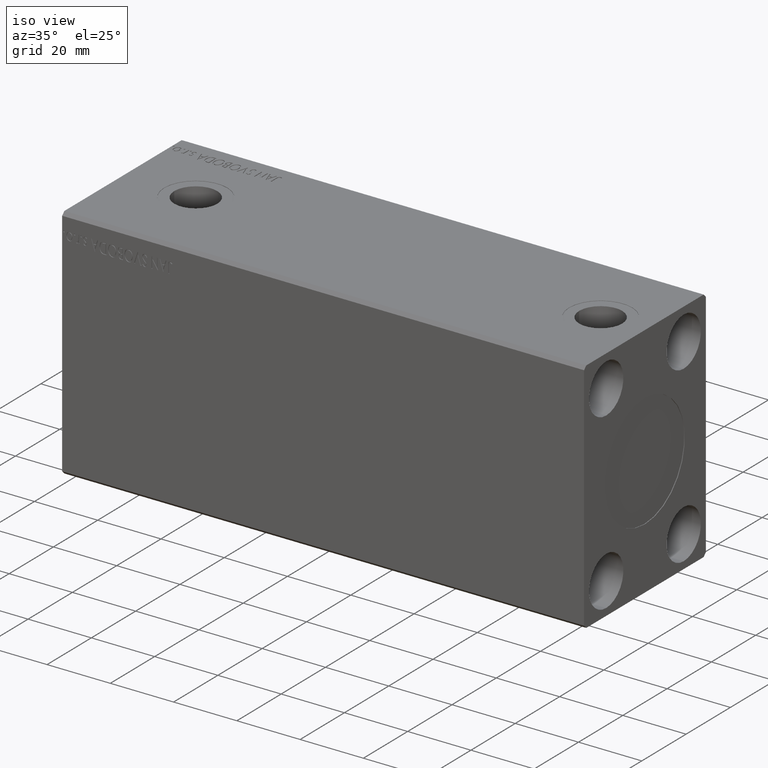
[diagram: clean part render]
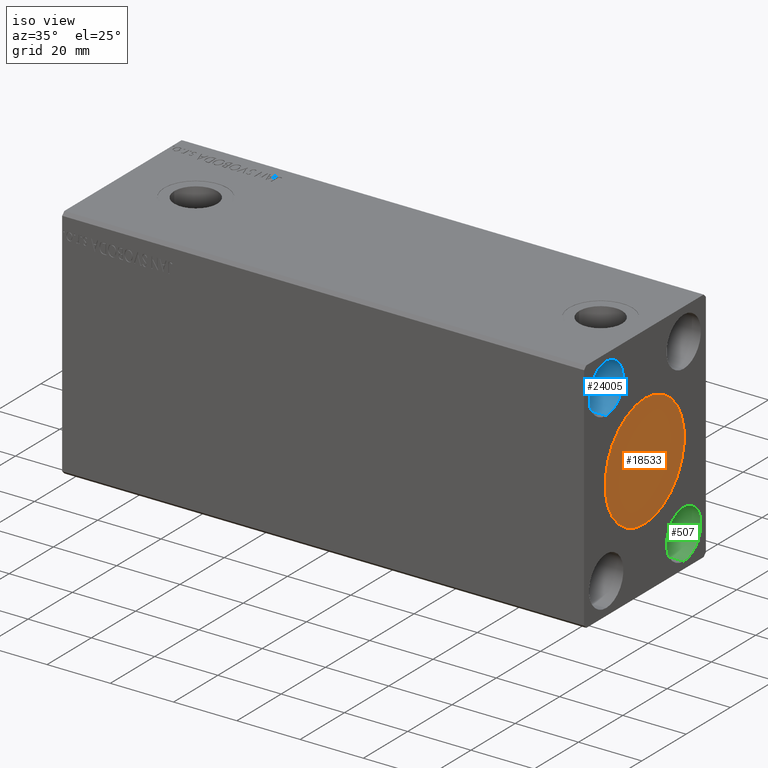
[diagram: same view with three faces highlighted in distinct colors, each labeled with its STEP entity id]
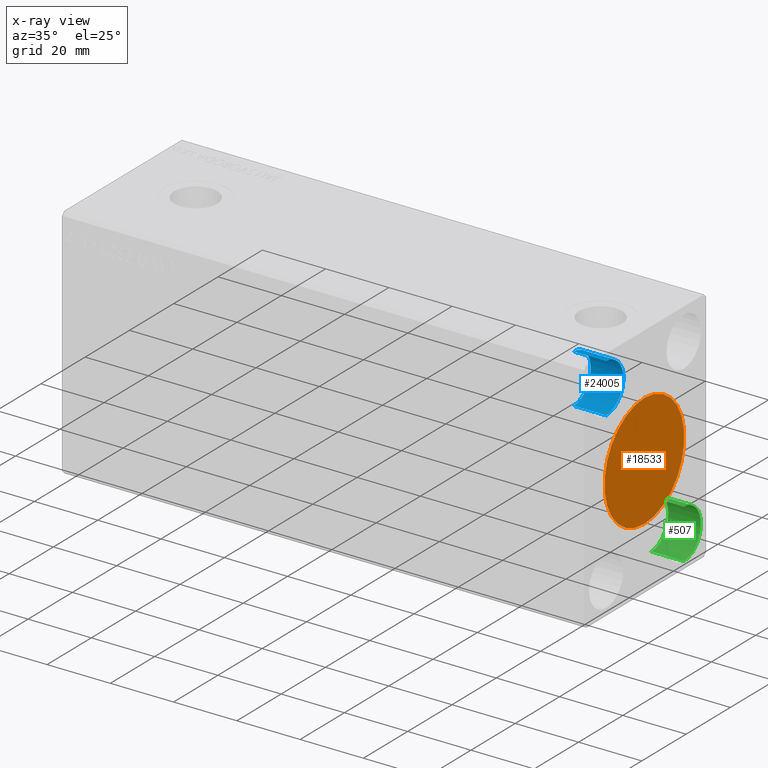
[diagram: x-ray of the same camera — body ghosted, the three highlighted faces saturated]
A machine part, iso view with three faces highlighted in distinct colors.
The next image is the same camera in x-ray (body ghosted, the three faces saturated) — at least one of them is partly hidden behind the body in this view.
Their STEP definitions:

[orange] entity #18533 — the highlighted planar face has unit normal (1, 0, 0).
#1634 = DIRECTION ( 'NONE',  ( 1.000000000000000000, 0.000000000000000000, 0.000000000000000000 ) ) ;
#1769 = CARTESIAN_POINT ( 'NONE',  ( 164.8000000000000114, 0.000000000000000000, 0.000000000000000000 ) ) ;
#2268 = EDGE_CURVE ( 'NONE', #30353, #29653, #7226, .T. ) ;
#2701 = AXIS2_PLACEMENT_3D ( 'NONE', #4879, #1634, #14792 ) ;
#4879 = CARTESIAN_POINT ( 'NONE',  ( 164.8000000000000114, 0.000000000000000000, 0.000000000000000000 ) ) ;
#7226 = CIRCLE ( 'NONE', #23735, 18.00000000000000000 ) ;
#8275 = CARTESIAN_POINT ( 'NONE',  ( 164.8000000000000114, 0.000000000000000000, 0.000000000000000000 ) ) ;
#11275 = DIRECTION ( 'NONE',  ( 0.000000000000000000, 0.000000000000000000, -1.000000000000000000 ) ) ;
#11916 = AXIS2_PLACEMENT_3D ( 'NONE', #8275, #21402, #34543 ) ;
#14402 = CIRCLE ( 'NONE', #2701, 18.00000000000000000 ) ;
#14792 = DIRECTION ( 'NONE',  ( 0.000000000000000000, 0.000000000000000000, -1.000000000000000000 ) ) ;
#15360 = CARTESIAN_POINT ( 'NONE',  ( 164.8000000000000114, 0.000000000000000000, -18.00000000000000000 ) ) ;
#18533 = ADVANCED_FACE ( 'NONE', ( #41005 ), #37787, .T. ) ;
#21402 = DIRECTION ( 'NONE',  ( 1.000000000000000000, 0.000000000000000000, 0.000000000000000000 ) ) ;
#23735 = AXIS2_PLACEMENT_3D ( 'NONE', #1769, #40767, #11275 ) ;
#29653 = VERTEX_POINT ( 'NONE', #30618 ) ;
#30353 = VERTEX_POINT ( 'NONE', #15360 ) ;
#30618 = CARTESIAN_POINT ( 'NONE',  ( 164.8000000000000114, 2.204364238465235428E-15, 18.00000000000000000 ) ) ;
#32519 = EDGE_LOOP ( 'NONE', ( #39730, #37369 ) ) ;
#34543 = DIRECTION ( 'NONE',  ( 0.000000000000000000, 0.000000000000000000, -1.000000000000000000 ) ) ;
#37369 = ORIENTED_EDGE ( 'NONE', *, *, #42148, .T. ) ;
#37787 = PLANE ( 'NONE',  #11916 ) ;
#39730 = ORIENTED_EDGE ( 'NONE', *, *, #2268, .T. ) ;
#40767 = DIRECTION ( 'NONE',  ( 1.000000000000000000, 0.000000000000000000, 0.000000000000000000 ) ) ;
#41005 = FACE_OUTER_BOUND ( 'NONE', #32519, .T. ) ;
#42148 = EDGE_CURVE ( 'NONE', #29653, #30353, #14402, .T. ) ;

[blue] entity #24005 — the highlighted cylindrical surface (edge-blend (fillet) strip) has radius 7.75 mm, axis along (1, -0, -0).
#1874 = LINE ( 'NONE', #11801, #31170 ) ;
#2901 = CARTESIAN_POINT ( 'NONE',  ( 154.6700000000000159, -17.50000000000000000, 35.25000000000000000 ) ) ;
#3063 = AXIS2_PLACEMENT_3D ( 'NONE', #28968, #16248, #22923 ) ;
#3870 = EDGE_CURVE ( 'NONE', #11226, #27870, #25859, .T. ) ;
#5258 = VECTOR ( 'NONE', #25538, 1000.000000000000000 ) ;
#6837 = ORIENTED_EDGE ( 'NONE', *, *, #29981, .F. ) ;
#9183 = ORIENTED_EDGE ( 'NONE', *, *, #14433, .T. ) ;
#9592 = VERTEX_POINT ( 'NONE', #40301 ) ;
#11226 = VERTEX_POINT ( 'NONE', #18670 ) ;
#11801 = CARTESIAN_POINT ( 'NONE',  ( 154.6700000000000159, -17.50000000000000000, 19.74999999999999645 ) ) ;
#12201 = LINE ( 'NONE', #2901, #5258 ) ;
#12229 = DIRECTION ( 'NONE',  ( 1.000000000000000000, -0.000000000000000000, -0.000000000000000000 ) ) ;
#13228 = CARTESIAN_POINT ( 'NONE',  ( 154.6700000000000159, -17.50000000000000000, 27.50000000000000000 ) ) ;
#14433 = EDGE_CURVE ( 'NONE', #29284, #27870, #1874, .T. ) ;
#15129 = ORIENTED_EDGE ( 'NONE', *, *, #39446, .T. ) ;
#15920 = ORIENTED_EDGE ( 'NONE', *, *, #3870, .F. ) ;
#16034 = CYLINDRICAL_SURFACE ( 'NONE', #3063, 7.750000000000003553 ) ;
#16248 = DIRECTION ( 'NONE',  ( 1.000000000000000000, -0.000000000000000000, -0.000000000000000000 ) ) ;
#16388 = CIRCLE ( 'NONE', #34253, 7.750000000000003553 ) ;
#18670 = CARTESIAN_POINT ( 'NONE',  ( 165.0000000000000000, -17.50000000000000000, 35.25000000000000000 ) ) ;
#22923 = DIRECTION ( 'NONE',  ( 0.000000000000000000, 0.000000000000000000, -1.000000000000000000 ) ) ;
#23340 = EDGE_LOOP ( 'NONE', ( #6837, #15129, #9183, #15920 ) ) ;
#24005 = ADVANCED_FACE ( 'NONE', ( #42310 ), #16034, .F. ) ;
#25538 = DIRECTION ( 'NONE',  ( 1.000000000000000000, -0.000000000000000000, -0.000000000000000000 ) ) ;
#25859 = CIRCLE ( 'NONE', #41690, 7.750000000000003553 ) ;
#26351 = DIRECTION ( 'NONE',  ( -1.000000000000000000, -0.000000000000000000, -0.000000000000000000 ) ) ;
#27870 = VERTEX_POINT ( 'NONE', #38158 ) ;
#28968 = CARTESIAN_POINT ( 'NONE',  ( 154.6700000000000159, -17.50000000000000000, 27.50000000000000000 ) ) ;
#29159 = DIRECTION ( 'NONE',  ( 0.000000000000000000, 0.000000000000000000, 1.000000000000000000 ) ) ;
#29284 = VERTEX_POINT ( 'NONE', #37772 ) ;
#29981 = EDGE_CURVE ( 'NONE', #9592, #11226, #12201, .T. ) ;
#30969 = CARTESIAN_POINT ( 'NONE',  ( 165.0000000000000000, -17.50000000000000000, 27.50000000000000000 ) ) ;
#31170 = VECTOR ( 'NONE', #12229, 1000.000000000000000 ) ;
#33967 = DIRECTION ( 'NONE',  ( 0.000000000000000000, 0.000000000000000000, 1.000000000000000000 ) ) ;
#34253 = AXIS2_PLACEMENT_3D ( 'NONE', #13228, #26351, #29159 ) ;
#37772 = CARTESIAN_POINT ( 'NONE',  ( 154.6700000000000159, -17.50000000000000000, 19.74999999999999645 ) ) ;
#38158 = CARTESIAN_POINT ( 'NONE',  ( 165.0000000000000000, -17.50000000000000000, 19.74999999999999645 ) ) ;
#39446 = EDGE_CURVE ( 'NONE', #9592, #29284, #16388, .T. ) ;
#40301 = CARTESIAN_POINT ( 'NONE',  ( 154.6700000000000159, -17.50000000000000000, 35.25000000000000000 ) ) ;
#40852 = DIRECTION ( 'NONE',  ( -1.000000000000000000, -0.000000000000000000, -0.000000000000000000 ) ) ;
#41690 = AXIS2_PLACEMENT_3D ( 'NONE', #30969, #40852, #33967 ) ;
#42310 = FACE_OUTER_BOUND ( 'NONE', #23340, .T. ) ;

[green] entity #507 — the highlighted cylindrical surface (edge-blend (fillet) strip) has radius 7.75 mm, axis along (1, -0, -0).
#507 = ADVANCED_FACE ( 'NONE', ( #26666 ), #20204, .F. ) ;
#1573 = ORIENTED_EDGE ( 'NONE', *, *, #4089, .F. ) ;
#1989 = CIRCLE ( 'NONE', #30916, 7.750000000000003553 ) ;
#3944 = CARTESIAN_POINT ( 'NONE',  ( 165.0000000000000000, 17.50000000000000000, -19.74999999999999645 ) ) ;
#4089 = EDGE_CURVE ( 'NONE', #36676, #15797, #4192, .T. ) ;
#4192 = LINE ( 'NONE', #24024, #38247 ) ;
#5690 = AXIS2_PLACEMENT_3D ( 'NONE', #15603, #28747, #16020 ) ;
#6150 = DIRECTION ( 'NONE',  ( 1.000000000000000000, -0.000000000000000000, -0.000000000000000000 ) ) ;
#7649 = DIRECTION ( 'NONE',  ( 1.000000000000000000, -0.000000000000000000, -0.000000000000000000 ) ) ;
#7789 = DIRECTION ( 'NONE',  ( 0.000000000000000000, 0.000000000000000000, 1.000000000000000000 ) ) ;
#10518 = DIRECTION ( 'NONE',  ( 0.000000000000000000, 0.000000000000000000, -1.000000000000000000 ) ) ;
#11242 = CARTESIAN_POINT ( 'NONE',  ( 165.0000000000000000, 17.50000000000000000, -27.50000000000000000 ) ) ;
#14664 = ORIENTED_EDGE ( 'NONE', *, *, #42594, .F. ) ;
#14848 = ORIENTED_EDGE ( 'NONE', *, *, #24816, .T. ) ;
#14863 = EDGE_CURVE ( 'NONE', #36676, #22790, #24267, .T. ) ;
#15603 = CARTESIAN_POINT ( 'NONE',  ( 154.6700000000000159, 17.50000000000000000, -27.50000000000000000 ) ) ;
#15797 = VERTEX_POINT ( 'NONE', #3944 ) ;
#16020 = DIRECTION ( 'NONE',  ( 0.000000000000000000, 0.000000000000000000, 1.000000000000000000 ) ) ;
#16067 = ORIENTED_EDGE ( 'NONE', *, *, #14863, .T. ) ;
#16589 = CARTESIAN_POINT ( 'NONE',  ( 154.6700000000000159, 17.50000000000000000, -19.74999999999999645 ) ) ;
#18121 = DIRECTION ( 'NONE',  ( -1.000000000000000000, -0.000000000000000000, -0.000000000000000000 ) ) ;
#20204 = CYLINDRICAL_SURFACE ( 'NONE', #23030, 7.750000000000003553 ) ;
#20637 = CARTESIAN_POINT ( 'NONE',  ( 154.6700000000000159, 17.50000000000000000, -27.50000000000000000 ) ) ;
#21261 = CARTESIAN_POINT ( 'NONE',  ( 165.0000000000000000, 17.50000000000000000, -35.25000000000000000 ) ) ;
#22170 = VERTEX_POINT ( 'NONE', #21261 ) ;
#22790 = VERTEX_POINT ( 'NONE', #42186 ) ;
#23030 = AXIS2_PLACEMENT_3D ( 'NONE', #20637, #33344, #10518 ) ;
#24024 = CARTESIAN_POINT ( 'NONE',  ( 154.6700000000000159, 17.50000000000000000, -19.74999999999999645 ) ) ;
#24267 = CIRCLE ( 'NONE', #5690, 7.750000000000003553 ) ;
#24816 = EDGE_CURVE ( 'NONE', #22790, #22170, #26587, .T. ) ;
#26067 = EDGE_LOOP ( 'NONE', ( #1573, #16067, #14848, #14664 ) ) ;
#26587 = LINE ( 'NONE', #35855, #35386 ) ;
#26666 = FACE_OUTER_BOUND ( 'NONE', #26067, .T. ) ;
#28747 = DIRECTION ( 'NONE',  ( -1.000000000000000000, -0.000000000000000000, -0.000000000000000000 ) ) ;
#30916 = AXIS2_PLACEMENT_3D ( 'NONE', #11242, #18121, #7789 ) ;
#33344 = DIRECTION ( 'NONE',  ( 1.000000000000000000, -0.000000000000000000, -0.000000000000000000 ) ) ;
#35386 = VECTOR ( 'NONE', #6150, 1000.000000000000000 ) ;
#35855 = CARTESIAN_POINT ( 'NONE',  ( 154.6700000000000159, 17.50000000000000000, -35.25000000000000000 ) ) ;
#36676 = VERTEX_POINT ( 'NONE', #16589 ) ;
#38247 = VECTOR ( 'NONE', #7649, 1000.000000000000000 ) ;
#42186 = CARTESIAN_POINT ( 'NONE',  ( 154.6700000000000159, 17.50000000000000000, -35.25000000000000000 ) ) ;
#42594 = EDGE_CURVE ( 'NONE', #15797, #22170, #1989, .T. ) ;